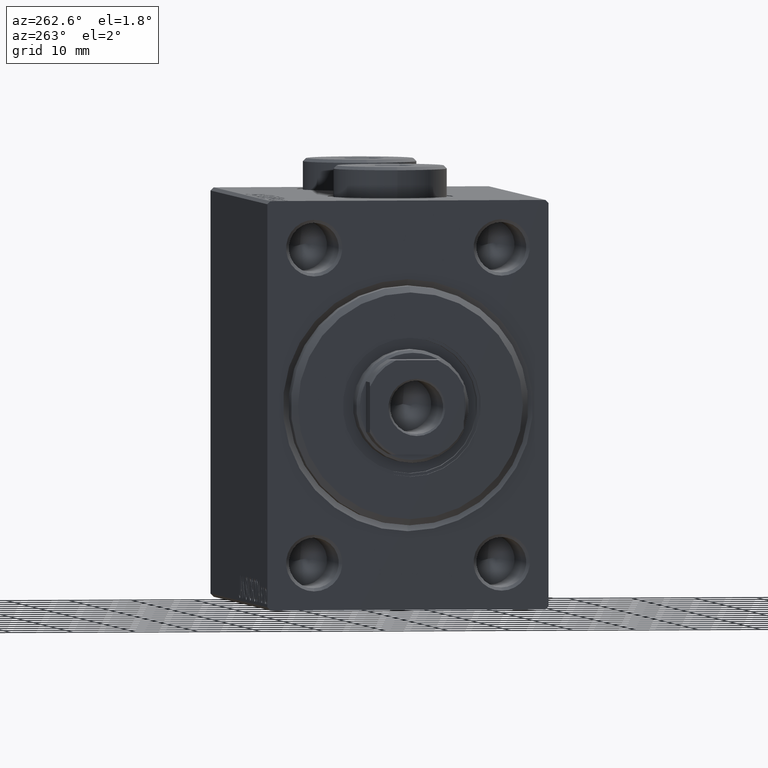
[diagram: clean part render]
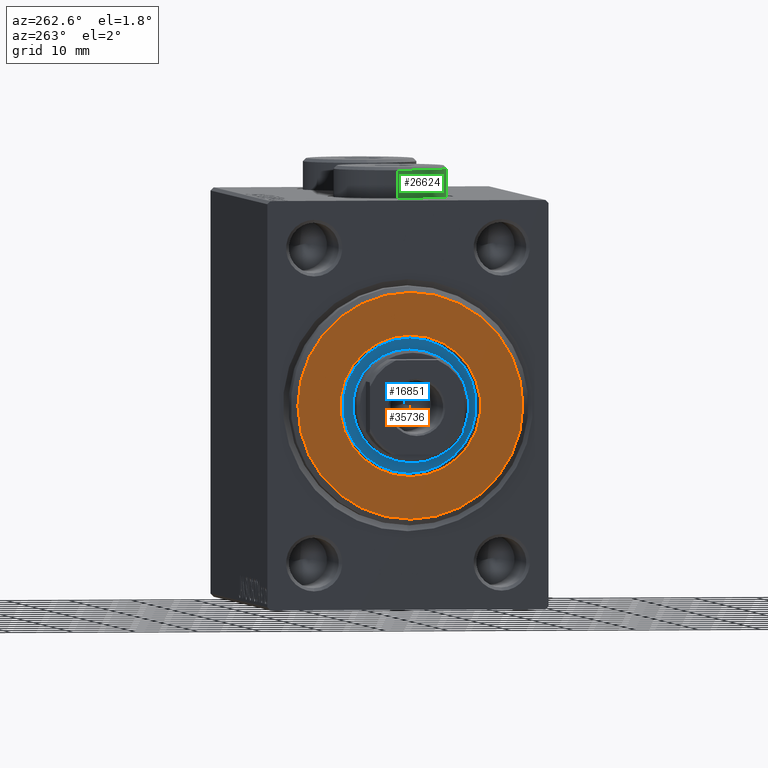
[diagram: same view with three faces highlighted in distinct colors, each labeled with its STEP entity id]
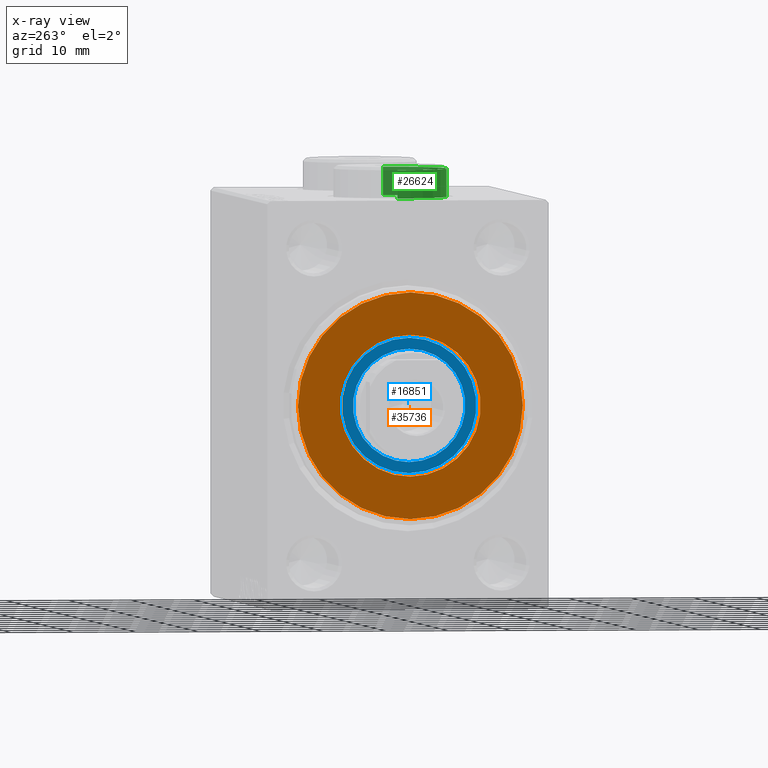
[diagram: x-ray of the same camera — body ghosted, the three highlighted faces saturated]
A machine part, auxiliary view with three faces highlighted in distinct colors.
The next image is the same camera in x-ray (body ghosted, the three faces saturated) — at least one of them is partly hidden behind the body in this view.
Their STEP definitions:

[orange] entity #35736 — the highlighted planar face has unit normal (-1, 0, 0).
#156 = CIRCLE ( 'NONE', #36274, 17.99999999999999645 ) ;
#778 = EDGE_CURVE ( 'NONE', #32521, #1398, #30510, .T. ) ;
#933 = EDGE_LOOP ( 'NONE', ( #34083, #25345 ) ) ;
#1398 = VERTEX_POINT ( 'NONE', #39334 ) ;
#2518 = AXIS2_PLACEMENT_3D ( 'NONE', #26553, #44306, #37426 ) ;
#2557 = DIRECTION ( 'NONE',  ( 0.000000000000000000, 0.000000000000000000, -1.000000000000000000 ) ) ;
#4374 = CARTESIAN_POINT ( 'NONE',  ( 3.000000000000000000, 0.000000000000000000, 0.000000000000000000 ) ) ;
#4822 = DIRECTION ( 'NONE',  ( 0.000000000000000000, 0.000000000000000000, -1.000000000000000000 ) ) ;
#6038 = AXIS2_PLACEMENT_3D ( 'NONE', #19791, #30413, #9637 ) ;
#7356 = ORIENTED_EDGE ( 'NONE', *, *, #8372, .F. ) ;
#7910 = EDGE_LOOP ( 'NONE', ( #24656, #7356 ) ) ;
#8372 = EDGE_CURVE ( 'NONE', #1398, #32521, #24075, .T. ) ;
#9637 = DIRECTION ( 'NONE',  ( 0.000000000000000000, 0.000000000000000000, -1.000000000000000000 ) ) ;
#11738 = CARTESIAN_POINT ( 'NONE',  ( 3.000000000000000000, 0.000000000000000000, 0.000000000000000000 ) ) ;
#12438 = CARTESIAN_POINT ( 'NONE',  ( 3.000000000000000000, 0.000000000000000000, 0.000000000000000000 ) ) ;
#12623 = FACE_OUTER_BOUND ( 'NONE', #933, .T. ) ;
#15777 = AXIS2_PLACEMENT_3D ( 'NONE', #12438, #16360, #2557 ) ;
#16360 = DIRECTION ( 'NONE',  ( 1.000000000000000000, 0.000000000000000000, 0.000000000000000000 ) ) ;
#17856 = EDGE_CURVE ( 'NONE', #44446, #23574, #156, .T. ) ;
#19791 = CARTESIAN_POINT ( 'NONE',  ( 3.000000000000000000, 0.000000000000000000, 0.000000000000000000 ) ) ;
#20895 = CIRCLE ( 'NONE', #2518, 17.99999999999999645 ) ;
#23542 = CARTESIAN_POINT ( 'NONE',  ( 3.000000000000000000, 0.000000000000000000, -11.25000000000000178 ) ) ;
#23574 = VERTEX_POINT ( 'NONE', #36391 ) ;
#24075 = CIRCLE ( 'NONE', #42494, 11.25000000000000178 ) ;
#24656 = ORIENTED_EDGE ( 'NONE', *, *, #778, .F. ) ;
#25345 = ORIENTED_EDGE ( 'NONE', *, *, #44910, .T. ) ;
#26253 = DIRECTION ( 'NONE',  ( 1.000000000000000000, 0.000000000000000000, 0.000000000000000000 ) ) ;
#26553 = CARTESIAN_POINT ( 'NONE',  ( 3.000000000000000000, 0.000000000000000000, 0.000000000000000000 ) ) ;
#29275 = DIRECTION ( 'NONE',  ( 1.000000000000000000, -0.000000000000000000, 0.000000000000000000 ) ) ;
#30413 = DIRECTION ( 'NONE',  ( 1.000000000000000000, -0.000000000000000000, 0.000000000000000000 ) ) ;
#30510 = CIRCLE ( 'NONE', #15777, 11.25000000000000178 ) ;
#32521 = VERTEX_POINT ( 'NONE', #23542 ) ;
#33674 = PLANE ( 'NONE',  #6038 ) ;
#34083 = ORIENTED_EDGE ( 'NONE', *, *, #17856, .T. ) ;
#35736 = ADVANCED_FACE ( 'NONE', ( #12623, #41241 ), #33674, .T. ) ;
#36274 = AXIS2_PLACEMENT_3D ( 'NONE', #4374, #29275, #4822 ) ;
#36391 = CARTESIAN_POINT ( 'NONE',  ( 3.000000000000000000, 2.265596578422603002E-15, -17.99999999999999645 ) ) ;
#37426 = DIRECTION ( 'NONE',  ( 0.000000000000000000, 0.000000000000000000, -1.000000000000000000 ) ) ;
#39334 = CARTESIAN_POINT ( 'NONE',  ( 3.000000000000000000, 1.377727649040772586E-15, 11.25000000000000178 ) ) ;
#40333 = DIRECTION ( 'NONE',  ( 0.000000000000000000, 0.000000000000000000, -1.000000000000000000 ) ) ;
#40472 = CARTESIAN_POINT ( 'NONE',  ( 3.000000000000000000, 0.000000000000000000, 17.99999999999999645 ) ) ;
#41241 = FACE_BOUND ( 'NONE', #7910, .T. ) ;
#42494 = AXIS2_PLACEMENT_3D ( 'NONE', #11738, #26253, #40333 ) ;
#44306 = DIRECTION ( 'NONE',  ( 1.000000000000000000, -0.000000000000000000, 0.000000000000000000 ) ) ;
#44446 = VERTEX_POINT ( 'NONE', #40472 ) ;
#44910 = EDGE_CURVE ( 'NONE', #23574, #44446, #20895, .T. ) ;

[blue] entity #16851 — the highlighted planar face has unit normal (-1, 0, 0).
#335 = CIRCLE ( 'NONE', #31241, 10.75000000000000000 ) ;
#1185 = EDGE_CURVE ( 'NONE', #32754, #13958, #335, .T. ) ;
#1966 = AXIS2_PLACEMENT_3D ( 'NONE', #32569, #35592, #31892 ) ;
#2536 = CIRCLE ( 'NONE', #13523, 9.000000000000000000 ) ;
#2836 = DIRECTION ( 'NONE',  ( 0.000000000000000000, 0.000000000000000000, -1.000000000000000000 ) ) ;
#3592 = EDGE_LOOP ( 'NONE', ( #17049, #18654 ) ) ;
#10191 = PLANE ( 'NONE',  #36242 ) ;
#11049 = VERTEX_POINT ( 'NONE', #31929 ) ;
#13272 = CARTESIAN_POINT ( 'NONE',  ( 1.500000000000000000, 0.000000000000000000, 0.000000000000000000 ) ) ;
#13523 = AXIS2_PLACEMENT_3D ( 'NONE', #32568, #18276, #43168 ) ;
#13958 = VERTEX_POINT ( 'NONE', #29247 ) ;
#15559 = DIRECTION ( 'NONE',  ( 1.000000000000000000, 0.000000000000000000, 0.000000000000000000 ) ) ;
#16637 = CARTESIAN_POINT ( 'NONE',  ( 1.500000000000000000, 0.000000000000000000, 0.000000000000000000 ) ) ;
#16851 = ADVANCED_FACE ( 'NONE', ( #37643, #23556 ), #10191, .T. ) ;
#17049 = ORIENTED_EDGE ( 'NONE', *, *, #1185, .T. ) ;
#17740 = VERTEX_POINT ( 'NONE', #30925 ) ;
#18276 = DIRECTION ( 'NONE',  ( 1.000000000000000000, 0.000000000000000000, 0.000000000000000000 ) ) ;
#18580 = DIRECTION ( 'NONE',  ( 0.000000000000000000, 0.000000000000000000, -1.000000000000000000 ) ) ;
#18654 = ORIENTED_EDGE ( 'NONE', *, *, #31771, .T. ) ;
#20202 = DIRECTION ( 'NONE',  ( 0.000000000000000000, 0.000000000000000000, -1.000000000000000000 ) ) ;
#20559 = DIRECTION ( 'NONE',  ( 1.000000000000000000, 0.000000000000000000, 0.000000000000000000 ) ) ;
#22378 = ORIENTED_EDGE ( 'NONE', *, *, #22874, .F. ) ;
#22874 = EDGE_CURVE ( 'NONE', #17740, #11049, #2536, .T. ) ;
#23556 = FACE_OUTER_BOUND ( 'NONE', #3592, .T. ) ;
#24002 = CIRCLE ( 'NONE', #34341, 10.75000000000000000 ) ;
#25713 = CARTESIAN_POINT ( 'NONE',  ( 1.500000000000000000, 0.000000000000000000, 0.000000000000000000 ) ) ;
#27343 = DIRECTION ( 'NONE',  ( 1.000000000000000000, 0.000000000000000000, 0.000000000000000000 ) ) ;
#28481 = CIRCLE ( 'NONE', #1966, 9.000000000000000000 ) ;
#29247 = CARTESIAN_POINT ( 'NONE',  ( 1.500000000000000000, 1.316495309083404223E-15, -10.75000000000000000 ) ) ;
#29365 = EDGE_CURVE ( 'NONE', #11049, #17740, #28481, .T. ) ;
#30391 = ORIENTED_EDGE ( 'NONE', *, *, #29365, .F. ) ;
#30925 = CARTESIAN_POINT ( 'NONE',  ( 1.499999999999999556, 1.102182119232617517E-15, 9.000000000000000000 ) ) ;
#31241 = AXIS2_PLACEMENT_3D ( 'NONE', #13272, #27343, #20202 ) ;
#31771 = EDGE_CURVE ( 'NONE', #13958, #32754, #24002, .T. ) ;
#31892 = DIRECTION ( 'NONE',  ( 0.000000000000000000, 0.000000000000000000, -1.000000000000000000 ) ) ;
#31929 = CARTESIAN_POINT ( 'NONE',  ( 1.499999999999999556, 0.000000000000000000, -9.000000000000000000 ) ) ;
#32568 = CARTESIAN_POINT ( 'NONE',  ( 1.499999999999999556, 0.000000000000000000, 0.000000000000000000 ) ) ;
#32569 = CARTESIAN_POINT ( 'NONE',  ( 1.499999999999999556, 0.000000000000000000, 0.000000000000000000 ) ) ;
#32754 = VERTEX_POINT ( 'NONE', #34140 ) ;
#34140 = CARTESIAN_POINT ( 'NONE',  ( 1.500000000000000000, 0.000000000000000000, 10.75000000000000000 ) ) ;
#34341 = AXIS2_PLACEMENT_3D ( 'NONE', #25713, #15559, #18580 ) ;
#35592 = DIRECTION ( 'NONE',  ( 1.000000000000000000, 0.000000000000000000, 0.000000000000000000 ) ) ;
#36242 = AXIS2_PLACEMENT_3D ( 'NONE', #16637, #20559, #2836 ) ;
#37643 = FACE_BOUND ( 'NONE', #42987, .T. ) ;
#42987 = EDGE_LOOP ( 'NONE', ( #30391, #22378 ) ) ;
#43168 = DIRECTION ( 'NONE',  ( 0.000000000000000000, 0.000000000000000000, -1.000000000000000000 ) ) ;

[green] entity #26624 — the highlighted cylindrical surface (partial cylindrical patch) has radius 9 mm, axis along (-0, -0, -1).
#470 = DIRECTION ( 'NONE',  ( 0.000000000000000000, 0.000000000000000000, 1.000000000000000000 ) ) ;
#764 = CARTESIAN_POINT ( 'NONE',  ( 9.000000000000001776, 1.102182119232617911E-15, 4.500000000000006217 ) ) ;
#1192 = LINE ( 'NONE', #15228, #34101 ) ;
#1516 = CARTESIAN_POINT ( 'NONE',  ( 9.000000000000001776, 1.102182119232617911E-15, 0.000000000000000000 ) ) ;
#2504 = DIRECTION ( 'NONE',  ( -0.000000000000000000, -0.000000000000000000, -1.000000000000000000 ) ) ;
#3543 = DIRECTION ( 'NONE',  ( -0.000000000000000000, -0.000000000000000000, -1.000000000000000000 ) ) ;
#3757 = EDGE_CURVE ( 'NONE', #30105, #27743, #4801, .T. ) ;
#4801 = CIRCLE ( 'NONE', #14379, 9.000000000000001776 ) ;
#4889 = AXIS2_PLACEMENT_3D ( 'NONE', #21424, #470, #14516 ) ;
#7182 = DIRECTION ( 'NONE',  ( 1.000000000000000000, 0.000000000000000000, 0.000000000000000000 ) ) ;
#7734 = EDGE_CURVE ( 'NONE', #27743, #19257, #44212, .T. ) ;
#10442 = DIRECTION ( 'NONE',  ( -1.000000000000000000, 0.000000000000000000, 0.000000000000000000 ) ) ;
#10594 = EDGE_LOOP ( 'NONE', ( #36434, #32566, #38922, #35588 ) ) ;
#10845 = EDGE_CURVE ( 'NONE', #19257, #44327, #13698, .T. ) ;
#12177 = CARTESIAN_POINT ( 'NONE',  ( -9.000000000000001776, 0.000000000000000000, 4.500000000000006217 ) ) ;
#13698 = CIRCLE ( 'NONE', #4889, 9.000000000000001776 ) ;
#13893 = CYLINDRICAL_SURFACE ( 'NONE', #35796, 9.000000000000001776 ) ;
#14379 = AXIS2_PLACEMENT_3D ( 'NONE', #28392, #31642, #7182 ) ;
#14516 = DIRECTION ( 'NONE',  ( 1.000000000000000000, 0.000000000000000000, 0.000000000000000000 ) ) ;
#15228 = CARTESIAN_POINT ( 'NONE',  ( 9.000000000000001776, 1.102182119232617911E-15, 5.000000000000000000 ) ) ;
#16664 = VECTOR ( 'NONE', #2504, 1000.000000000000000 ) ;
#19257 = VERTEX_POINT ( 'NONE', #29843 ) ;
#21424 = CARTESIAN_POINT ( 'NONE',  ( 0.000000000000000000, 0.000000000000000000, 0.000000000000000000 ) ) ;
#26624 = ADVANCED_FACE ( 'NONE', ( #42039 ), #13893, .T. ) ;
#27505 = CARTESIAN_POINT ( 'NONE',  ( 0.000000000000000000, 0.000000000000000000, 5.000000000000000000 ) ) ;
#27743 = VERTEX_POINT ( 'NONE', #12177 ) ;
#28392 = CARTESIAN_POINT ( 'NONE',  ( 0.000000000000000000, 0.000000000000000000, 4.500000000000006217 ) ) ;
#29843 = CARTESIAN_POINT ( 'NONE',  ( -9.000000000000001776, 0.000000000000000000, 0.000000000000000000 ) ) ;
#30105 = VERTEX_POINT ( 'NONE', #764 ) ;
#31642 = DIRECTION ( 'NONE',  ( 0.000000000000000000, 0.000000000000000000, -1.000000000000000000 ) ) ;
#32566 = ORIENTED_EDGE ( 'NONE', *, *, #3757, .T. ) ;
#34101 = VECTOR ( 'NONE', #43362, 1000.000000000000000 ) ;
#35588 = ORIENTED_EDGE ( 'NONE', *, *, #10845, .T. ) ;
#35796 = AXIS2_PLACEMENT_3D ( 'NONE', #27505, #3543, #10442 ) ;
#36434 = ORIENTED_EDGE ( 'NONE', *, *, #37695, .F. ) ;
#37695 = EDGE_CURVE ( 'NONE', #30105, #44327, #1192, .T. ) ;
#38922 = ORIENTED_EDGE ( 'NONE', *, *, #7734, .T. ) ;
#40325 = CARTESIAN_POINT ( 'NONE',  ( -9.000000000000001776, 0.000000000000000000, 5.000000000000000000 ) ) ;
#42039 = FACE_OUTER_BOUND ( 'NONE', #10594, .T. ) ;
#43362 = DIRECTION ( 'NONE',  ( -0.000000000000000000, -0.000000000000000000, -1.000000000000000000 ) ) ;
#44212 = LINE ( 'NONE', #40325, #16664 ) ;
#44327 = VERTEX_POINT ( 'NONE', #1516 ) ;